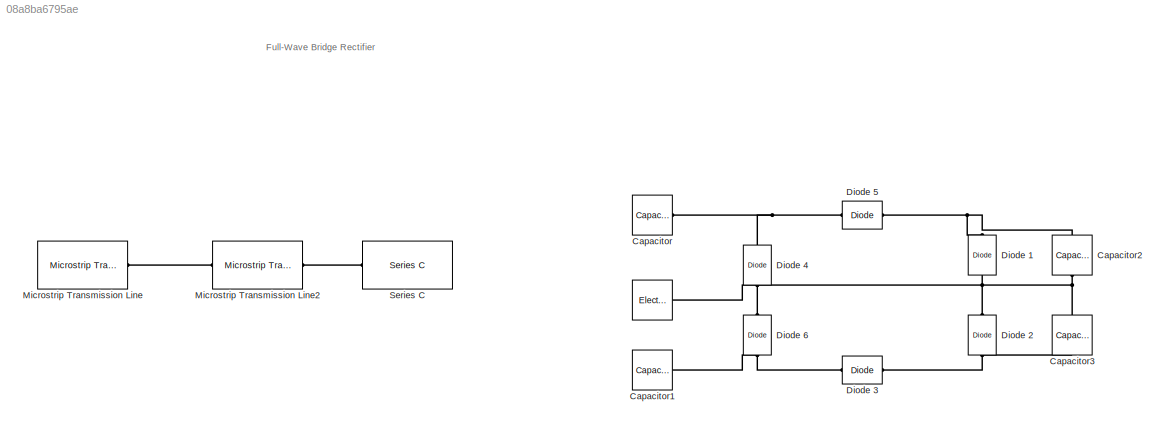
MODEL slx_08a8ba6795ae
KIND model
CONFIG AbsTol = auto
CONFIG EnableMultiTasking = on
CONFIG FixedStep = auto
CONFIG MaxStep = auto
CONFIG MinStep = auto
CONFIG RelTol = 1e-3
CONFIG SampleTimeConstraint = Unconstrained
CONFIG Solver = ode45
CONFIG SolverName = ode45
CONFIG StartTime = 0.0
CONFIG StopTime = 0.05
BLOCK [Reference]    REF=fl_lib/Electrical/Electrical Elements/Electrical Reference
  Ports = [0, 0, 0, 0, 0, 1]
  SourceBlock = fl_lib/Electrical/Electrical Elements/Electrical Reference
  SourceProductBaseCode = SS
  SourceProductName = Simscape
  SourceType = Electrical Reference
BLOCK [Reference] Capacitor  REF=elec_lib/Passive Devices/Capacitor
  Ports = [0, 0, 0, 0, 0, 1, 1]
  SourceBlock = elec_lib/Passive Devices/Capacitor
  SourceProductBaseCode = SN
  SourceProductName = Simscape Electronics
  SourceType = Capacitor
BLOCK [Reference] Capacitor1  REF=elec_lib/Passive Devices/Capacitor
  Ports = [0, 0, 0, 0, 0, 1, 1]
  SourceBlock = elec_lib/Passive Devices/Capacitor
  SourceProductBaseCode = SN
  SourceProductName = Simscape Electronics
  SourceType = Capacitor
BLOCK [Reference] Capacitor2  REF=elec_lib/Passive Devices/Capacitor
  Ports = [0, 0, 0, 0, 0, 1, 1]
  SourceBlock = elec_lib/Passive Devices/Capacitor
  SourceProductBaseCode = SN
  SourceProductName = Simscape Electronics
  SourceType = Capacitor
BLOCK [Reference] Capacitor3  REF=elec_lib/Passive Devices/Capacitor
  Ports = [0, 0, 0, 0, 0, 1, 1]
  SourceBlock = elec_lib/Passive Devices/Capacitor
  SourceProductBaseCode = SN
  SourceProductName = Simscape Electronics
  SourceType = Capacitor
BLOCK [Reference] Diode 1  REF=fl_lib/Electrical/Electrical Elements/Diode
  Ports = [0, 0, 0, 0, 0, 1, 1]
  SourceBlock = fl_lib/Electrical/Electrical Elements/Diode
  SourceProductBaseCode = SS
  SourceProductName = Simscape
  SourceType = Diode
BLOCK [Reference] Diode 2  REF=fl_lib/Electrical/Electrical Elements/Diode
  Ports = [0, 0, 0, 0, 0, 1, 1]
  SourceBlock = fl_lib/Electrical/Electrical Elements/Diode
  SourceProductBaseCode = SS
  SourceProductName = Simscape
  SourceType = Diode
BLOCK [Reference] Diode 3  REF=fl_lib/Electrical/Electrical Elements/Diode
  Ports = [0, 0, 0, 0, 0, 1, 1]
  SourceBlock = fl_lib/Electrical/Electrical Elements/Diode
  SourceProductBaseCode = SS
  SourceProductName = Simscape
  SourceType = Diode
BLOCK [Reference] Diode 4  REF=fl_lib/Electrical/Electrical Elements/Diode
  Ports = [0, 0, 0, 0, 0, 1, 1]
  SourceBlock = fl_lib/Electrical/Electrical Elements/Diode
  SourceProductBaseCode = SS
  SourceProductName = Simscape
  SourceType = Diode
BLOCK [Reference] Diode 5  REF=fl_lib/Electrical/Electrical Elements/Diode
  Ports = [0, 0, 0, 0, 0, 1, 1]
  SourceBlock = fl_lib/Electrical/Electrical Elements/Diode
  SourceProductBaseCode = SS
  SourceProductName = Simscape
  SourceType = Diode
BLOCK [Reference] Diode 6  REF=fl_lib/Electrical/Electrical Elements/Diode
  Ports = [0, 0, 0, 0, 0, 1, 1]
  SourceBlock = fl_lib/Electrical/Electrical Elements/Diode
  SourceProductBaseCode = SS
  SourceProductName = Simscape
  SourceType = Diode
BLOCK [Reference] Microstrip Transmission Line  REF=rftxlines1/Microstrip
Transmission Line
  Ports = [0, 0, 0, 0, 0, 1, 1]
  SourceBlock = rftxlines1/Microstrip\nTransmission Line
  SourceProductBaseCode = RB
  SourceProductName = RF Blockset
  SourceType = Microstrip Transmission Line
BLOCK [Reference] Microstrip Transmission Line2  REF=rftxlines1/Microstrip
Transmission Line
  Ports = [0, 0, 0, 0, 0, 1, 1]
  SourceBlock = rftxlines1/Microstrip\nTransmission Line
  SourceProductBaseCode = RB
  SourceProductName = RF Blockset
  SourceType = Microstrip Transmission Line
BLOCK [Reference] Series C  REF=rfseriesshuntrlcs1/Series C
  Ports = [0, 0, 0, 0, 0, 1, 1]
  SourceBlock = rfseriesshuntrlcs1/Series C
  SourceProductBaseCode = RB
  SourceProductName = RF Blockset
  SourceType = Series C
ANNOTATION (root): Full-Wave Bridge Rectifier
PNET net1:  :LConn1 -- Capacitor2:RConn1 -- Capacitor3:LConn1 -- Diode 1:LConn1 -- Diode 2:RConn1 -- Diode 4:LConn1 -- Diode 6:RConn1
PNET net2: Capacitor1:RConn1 -- Diode 3:RConn1 -- Diode 6:LConn1
PNET net3: Capacitor2:LConn1 -- Diode 1:RConn1 -- Diode 5:RConn1
PNET net4: Capacitor3:RConn1 -- Diode 2:LConn1 -- Diode 3:LConn1
PNET net5: Capacitor:RConn1 -- Diode 4:RConn1 -- Diode 5:LConn1
PLINE Microstrip Transmission Line2:LConn1 -- Microstrip Transmission Line:RConn1
PLINE Microstrip Transmission Line2:RConn1 -- Series C:LConn1
note: PNET lines group multi-terminal physical nets as a canonical sorted terminal list (undirected conserving connections); 2-terminal nets keep the pairwise PLINE form
